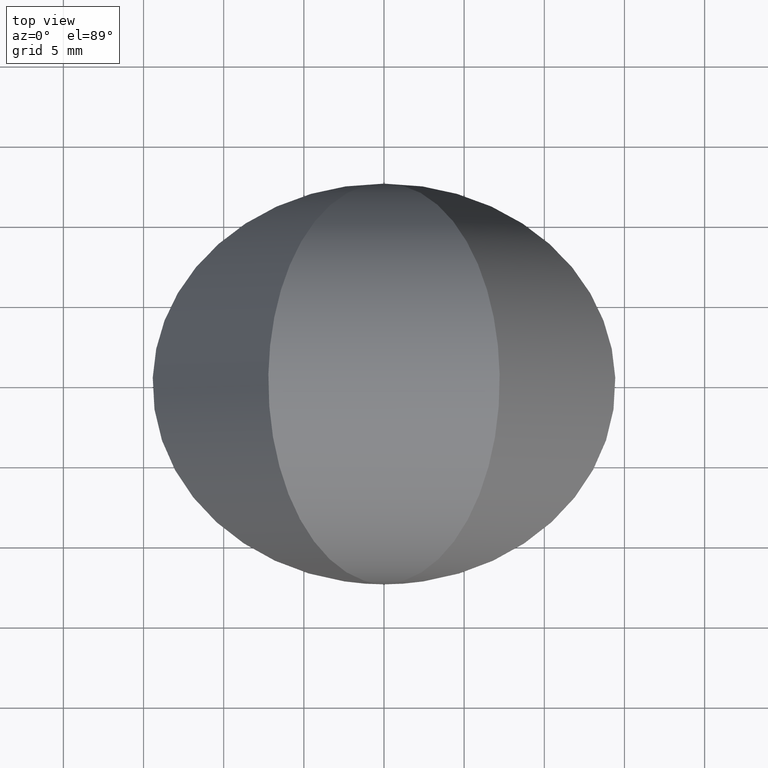
[diagram: clean part render]
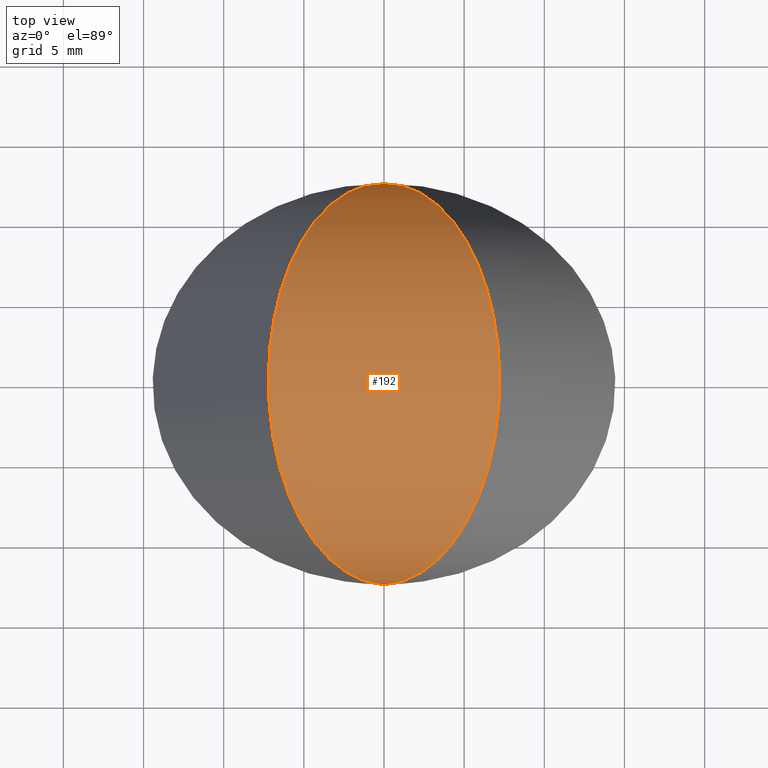
[diagram: same view with one face highlighted and labeled with its STEP entity id]
A machine part, top view. The second image highlights one B-rep face of the part: STEP entity #192.
In plain terms, the highlighted cylindrical surface (partial cylindrical patch) has radius 12.5 mm, axis along (-1, -0, 0).
Its self-contained STEP definition (entity closure, byte-faithful):
#5 = VERTEX_POINT ( 'NONE', #180 ) ;
#50 = CARTESIAN_POINT ( 'NONE',  ( 3.469446951953614189E-15, -12.50000000000000000, 1.734723475976807094E-15 ) ) ;
#55 = DIRECTION ( 'NONE',  ( 0.000000000000000000, 0.000000000000000000, 1.000000000000000000 ) ) ;
#60 = DIRECTION ( 'NONE',  ( -1.000000000000000000, -6.123233995736766282E-16, 0.000000000000000000 ) ) ;
#71 = VERTEX_POINT ( 'NONE', #164 ) ;
#72 = CARTESIAN_POINT ( 'NONE',  ( -14.43375672974079116, -12.50000000000000533, 25.00000000000000000 ) ) ;
#76 = CYLINDRICAL_SURFACE ( 'NONE', #266, 12.50000000000000000 ) ;
#107 =( BOUNDED_CURVE ( )  B_SPLINE_CURVE ( 3, ( #259, #165, #146, #242 ),
 .UNSPECIFIED., .F., .T. ) 
 B_SPLINE_CURVE_WITH_KNOTS ( ( 4, 4 ),
 ( 4.712388980384689674, 7.853981633974482790 ),
 .UNSPECIFIED. ) 
 CURVE ( )  GEOMETRIC_REPRESENTATION_ITEM ( )  RATIONAL_B_SPLINE_CURVE ( ( 1.000000000000000000, 0.3333333333333333703, 0.3333333333333333703, 1.000000000000000000 ) ) 
 REPRESENTATION_ITEM ( '' )  );
#121 = CARTESIAN_POINT ( 'NONE',  ( -3.469446951953614189E-15, 12.50000000000000000, 0.000000000000000000 ) ) ;
#126 = CARTESIAN_POINT ( 'NONE',  ( 0.000000000000000000, 0.000000000000000000, 0.000000000000000000 ) ) ;
#146 = CARTESIAN_POINT ( 'NONE',  ( 14.43375672974057267, -12.49999999999999467, 25.00000000000000000 ) ) ;
#155 = EDGE_CURVE ( 'NONE', #71, #5, #174, .T. ) ;
#164 = CARTESIAN_POINT ( 'NONE',  ( -3.469446951953614189E-15, 12.50000000000000000, 0.000000000000000000 ) ) ;
#165 = CARTESIAN_POINT ( 'NONE',  ( 14.43375672974055313, 12.50000000000001066, 25.00000000000000000 ) ) ;
#174 =( BOUNDED_CURVE ( )  B_SPLINE_CURVE ( 3, ( #121, #238, #72, #50 ),
 .UNSPECIFIED., .F., .F. ) 
 B_SPLINE_CURVE_WITH_KNOTS ( ( 4, 4 ),
 ( 4.712388980384689674, 7.853981633974482790 ),
 .UNSPECIFIED. ) 
 CURVE ( )  GEOMETRIC_REPRESENTATION_ITEM ( )  RATIONAL_B_SPLINE_CURVE ( ( 1.000000000000000000, 0.3333333333333333703, 0.3333333333333333703, 1.000000000000000000 ) ) 
 REPRESENTATION_ITEM ( '' )  );
#180 = CARTESIAN_POINT ( 'NONE',  ( 3.469446951953614189E-15, -12.50000000000000000, 1.734723475976807094E-15 ) ) ;
#192 = ADVANCED_FACE ( 'NONE', ( #248 ), #76, .T. ) ;
#196 = EDGE_LOOP ( 'NONE', ( #241, #226 ) ) ;
#215 = EDGE_CURVE ( 'NONE', #71, #5, #107, .T. ) ;
#226 = ORIENTED_EDGE ( 'NONE', *, *, #215, .F. ) ;
#238 = CARTESIAN_POINT ( 'NONE',  ( -14.43375672974080715, 12.50000000000000000, 25.00000000000000000 ) ) ;
#241 = ORIENTED_EDGE ( 'NONE', *, *, #155, .T. ) ;
#242 = CARTESIAN_POINT ( 'NONE',  ( 3.469446951953614189E-15, -12.50000000000000000, 1.734723475976807094E-15 ) ) ;
#248 = FACE_OUTER_BOUND ( 'NONE', #196, .T. ) ;
#259 = CARTESIAN_POINT ( 'NONE',  ( -3.469446951953614189E-15, 12.50000000000000000, 0.000000000000000000 ) ) ;
#266 = AXIS2_PLACEMENT_3D ( 'NONE', #126, #60, #55 ) ;